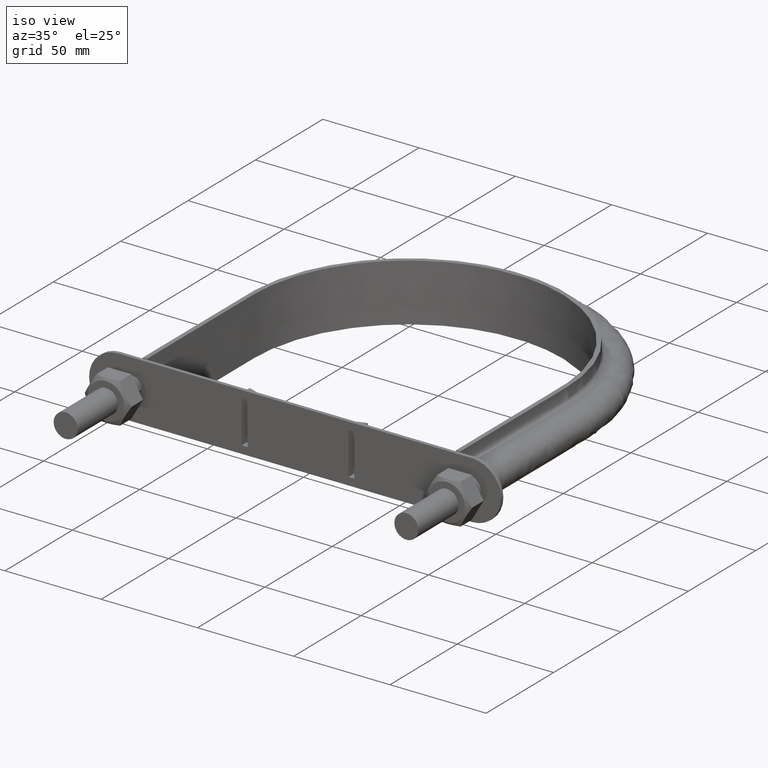
[diagram: clean part render]
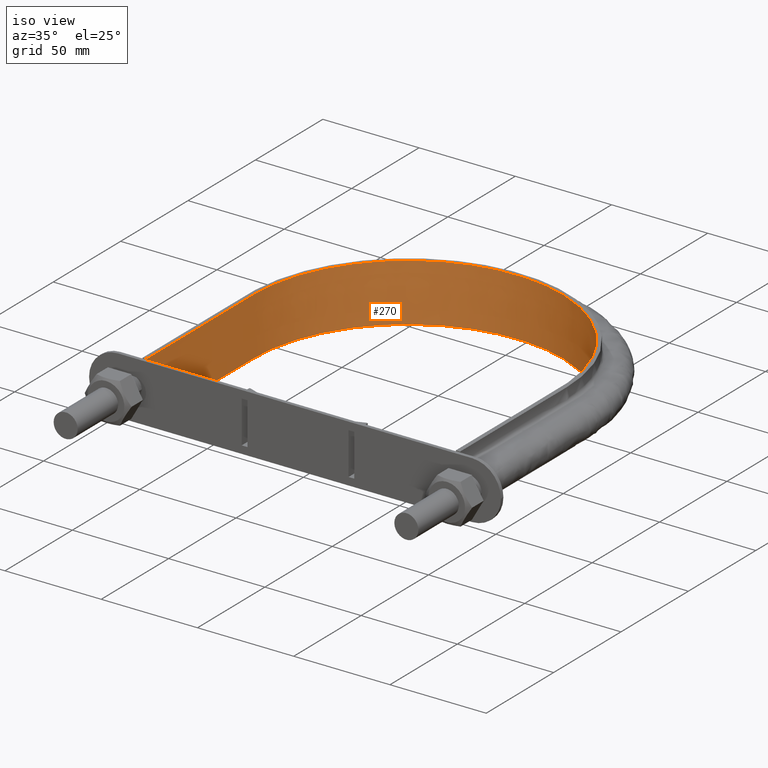
[diagram: same view with one face highlighted and labeled with its STEP entity id]
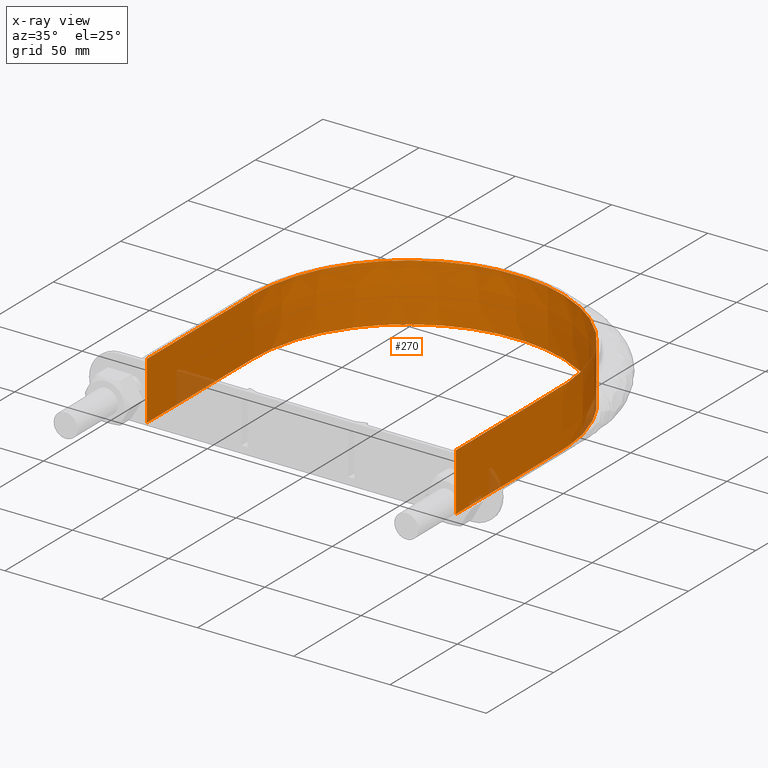
[diagram: x-ray of the same camera — body ghosted, the highlighted face saturated]
A machine part, iso view. The second image highlights one B-rep face of the part: STEP entity #270.
The next image is the same camera in x-ray: the body ghosted, the highlighted face saturated — about 3% of this face is hidden behind the body in this view.
In plain terms, the highlighted face is a SurfaceOfExtrusion surface.
Its self-contained STEP definition (entity closure, byte-faithful):
#270 = ADVANCED_FACE( '', ( #353 ), #354, .T. );
#353 = FACE_OUTER_BOUND( '', #540, .T. );
#354 = SURFACE_OF_LINEAR_EXTRUSION( '', #541, #542 );
#540 = EDGE_LOOP( '', ( #1652, #1653, #1654, #1655 ) );
#541 = B_SPLINE_CURVE_WITH_KNOTS( '', 3, ( #1656, #1657, #1658, #1659, #1660, #1661, #1662, #1663, #1664, #1665, #1666, #1667, #1668, #1669, #1670, #1671, #1672, #1673 ), .UNSPECIFIED., .F., .F., ( 4, 3, 1, 1, 1, 1, 1, 1, 1, 1, 3, 4 ), ( -9.00000000000000, -8.00000000000000, -7.50000000000000, -7.00000000000000, -6.00000000000000, -5.00000000000000, -4.00000000000000, -3.00000000000000, -2.00000000000000, -1.50000000000000, -1.00000000000000, 0.000000000000000 ), .UNSPECIFIED. );
#542 = VECTOR( '', #1674, 1000.00000000000 );
#1652 = ORIENTED_EDGE( '', *, *, #2209, .F. );
#1653 = ORIENTED_EDGE( '', *, *, #2198, .F. );
#1654 = ORIENTED_EDGE( '', *, *, #2202, .T. );
#1655 = ORIENTED_EDGE( '', *, *, #2206, .T. );
#1656 = CARTESIAN_POINT( '', ( -80.2500000000000, 48.5000000000001, -270.018143165184 ) );
#1657 = CARTESIAN_POINT( '', ( -80.2500000000000, 74.9200000000001, -270.018143165184 ) );
#1658 = CARTESIAN_POINT( '', ( -80.2500000000000, 101.340000000000, -270.018143165184 ) );
#1659 = CARTESIAN_POINT( '', ( -80.2500000000000, 127.760000000000, -270.018143165184 ) );
#1660 = CARTESIAN_POINT( '', ( -80.2500000000000, 133.750586735035, -270.018143165184 ) );
#1661 = CARTESIAN_POINT( '', ( -78.8786264043398, 145.768376163953, -270.018143165184 ) );
#1662 = CARTESIAN_POINT( '', ( -70.9339277239971, 168.577888193896, -270.018143165184 ) );
#1663 = CARTESIAN_POINT( '', ( -51.7427931998640, 192.644676397937, -270.018143165184 ) );
#1664 = CARTESIAN_POINT( '', ( -18.4670121667006, 208.668622663522, -270.018143165184 ) );
#1665 = CARTESIAN_POINT( '', ( 18.4670121667005, 208.668622663522, -270.018143165184 ) );
#1666 = CARTESIAN_POINT( '', ( 51.7427931998639, 192.644676397937, -270.018143165184 ) );
#1667 = CARTESIAN_POINT( '', ( 70.9339277239970, 168.577888193896, -270.018143165184 ) );
#1668 = CARTESIAN_POINT( '', ( 78.8786264043398, 145.768376163953, -270.018143165184 ) );
#1669 = CARTESIAN_POINT( '', ( 80.2500000000000, 133.750586735035, -270.018143165184 ) );
#1670 = CARTESIAN_POINT( '', ( 80.2499999999999, 127.760000000000, -270.018143165184 ) );
#1671 = CARTESIAN_POINT( '', ( 80.2499999999999, 101.340000000000, -270.018143165184 ) );
#1672 = CARTESIAN_POINT( '', ( 80.2499999999999, 74.9200000000000, -270.018143165184 ) );
#1673 = CARTESIAN_POINT( '', ( 80.2499999999999, 48.5000000000000, -270.018143165184 ) );
#1674 = DIRECTION( '', ( 0.000000000000000, 0.000000000000000, 1.00000000000000 ) );
#2198 = EDGE_CURVE( '', #2355, #2356, #2357, .T. );
#2202 = EDGE_CURVE( '', #2355, #2363, #2364, .T. );
#2206 = EDGE_CURVE( '', #2363, #2370, #2371, .T. );
#2209 = EDGE_CURVE( '', #2356, #2370, #2375, .T. );
#2355 = VERTEX_POINT( '', #2633 );
#2356 = VERTEX_POINT( '', #2634 );
#2357 = LINE( '', #2635, #2636 );
#2363 = VERTEX_POINT( '', #2674 );
#2364 = B_SPLINE_CURVE_WITH_KNOTS( '', 3, ( #2675, #2676, #2677, #2678, #2679, #2680, #2681, #2682, #2683, #2684, #2685, #2686, #2687, #2688, #2689, #2690, #2691, #2692 ), .UNSPECIFIED., .F., .F., ( 4, 3, 1, 1, 1, 1, 1, 1, 1, 1, 3, 4 ), ( -9.00000000000000, -8.00000000000000, -7.50000000000000, -7.00000000000000, -6.00000000000000, -5.00000000000000, -4.00000000000000, -3.00000000000000, -2.00000000000000, -1.50000000000000, -1.00000000000000, 0.000000000000000 ), .UNSPECIFIED. );
#2370 = VERTEX_POINT( '', #2726 );
#2371 = LINE( '', #2727, #2728 );
#2375 = B_SPLINE_CURVE_WITH_KNOTS( '', 3, ( #2763, #2764, #2765, #2766, #2767, #2768, #2769, #2770, #2771, #2772, #2773, #2774, #2775, #2776, #2777, #2778, #2779, #2780 ), .UNSPECIFIED., .F., .F., ( 4, 3, 1, 1, 1, 1, 1, 1, 1, 1, 3, 4 ), ( -9.00000000000000, -8.00000000000000, -7.50000000000000, -7.00000000000000, -6.00000000000000, -5.00000000000000, -4.00000000000000, -3.00000000000000, -2.00000000000000, -1.50000000000000, -1.00000000000000, 0.000000000000000 ), .UNSPECIFIED. );
#2633 = CARTESIAN_POINT( '', ( -80.2499999999999, 48.5000000000003, -15.0000000000000 ) );
#2634 = CARTESIAN_POINT( '', ( -80.2499999999999, 48.5000000000003, 15.0000000000000 ) );
#2635 = CARTESIAN_POINT( '', ( -80.2500000000000, 48.5000000000001, -270.018143165184 ) );
#2636 = VECTOR( '', #3311, 1000.00000000000 );
#2674 = CARTESIAN_POINT( '', ( 80.2499999999999, 48.5000000000000, -15.0000000000002 ) );
#2675 = CARTESIAN_POINT( '', ( -80.2500000000000, 48.5000000000001, -15.0000000000001 ) );
#2676 = CARTESIAN_POINT( '', ( -80.2500000000000, 74.9200000000001, -15.0000000000001 ) );
#2677 = CARTESIAN_POINT( '', ( -80.2500000000000, 101.340000000000, -15.0000000000001 ) );
#2678 = CARTESIAN_POINT( '', ( -80.2500000000000, 127.760000000000, -15.0000000000001 ) );
#2679 = CARTESIAN_POINT( '', ( -80.2500000000000, 133.750586735035, -15.0000000000001 ) );
#2680 = CARTESIAN_POINT( '', ( -78.8786264043398, 145.768376163953, -15.0000000000001 ) );
#2681 = CARTESIAN_POINT( '', ( -70.9339277239971, 168.577888193896, -15.0000000000001 ) );
#2682 = CARTESIAN_POINT( '', ( -51.7427931998640, 192.644676397937, -15.0000000000001 ) );
#2683 = CARTESIAN_POINT( '', ( -18.4670121667006, 208.668622663522, -15.0000000000001 ) );
#2684 = CARTESIAN_POINT( '', ( 18.4670121667005, 208.668622663522, -15.0000000000001 ) );
#2685 = CARTESIAN_POINT( '', ( 51.7427931998639, 192.644676397937, -15.0000000000001 ) );
#2686 = CARTESIAN_POINT( '', ( 70.9339277239970, 168.577888193896, -15.0000000000001 ) );
#2687 = CARTESIAN_POINT( '', ( 78.8786264043398, 145.768376163953, -15.0000000000001 ) );
#2688 = CARTESIAN_POINT( '', ( 80.2500000000000, 133.750586735035, -15.0000000000001 ) );
#2689 = CARTESIAN_POINT( '', ( 80.2499999999999, 127.760000000000, -15.0000000000001 ) );
#2690 = CARTESIAN_POINT( '', ( 80.2499999999999, 101.340000000000, -15.0000000000001 ) );
#2691 = CARTESIAN_POINT( '', ( 80.2499999999999, 74.9200000000000, -15.0000000000001 ) );
#2692 = CARTESIAN_POINT( '', ( 80.2499999999999, 48.5000000000000, -15.0000000000001 ) );
#2726 = CARTESIAN_POINT( '', ( 80.2500000000001, 48.5000000000003, 15.0000000000000 ) );
#2727 = CARTESIAN_POINT( '', ( 80.2499999999999, 48.5000000000000, -270.018143165184 ) );
#2728 = VECTOR( '', #3315, 1000.00000000000 );
#2763 = CARTESIAN_POINT( '', ( -80.2500000000000, 48.5000000000001, 14.9999999999999 ) );
#2764 = CARTESIAN_POINT( '', ( -80.2500000000000, 74.9200000000001, 14.9999999999999 ) );
#2765 = CARTESIAN_POINT( '', ( -80.2500000000000, 101.340000000000, 14.9999999999999 ) );
#2766 = CARTESIAN_POINT( '', ( -80.2500000000000, 127.760000000000, 14.9999999999999 ) );
#2767 = CARTESIAN_POINT( '', ( -80.2500000000000, 133.750586735035, 14.9999999999999 ) );
#2768 = CARTESIAN_POINT( '', ( -78.8786264043398, 145.768376163953, 14.9999999999999 ) );
#2769 = CARTESIAN_POINT( '', ( -70.9339277239971, 168.577888193896, 14.9999999999999 ) );
#2770 = CARTESIAN_POINT( '', ( -51.7427931998640, 192.644676397937, 14.9999999999999 ) );
#2771 = CARTESIAN_POINT( '', ( -18.4670121667006, 208.668622663522, 14.9999999999999 ) );
#2772 = CARTESIAN_POINT( '', ( 18.4670121667005, 208.668622663522, 14.9999999999999 ) );
#2773 = CARTESIAN_POINT( '', ( 51.7427931998639, 192.644676397937, 14.9999999999999 ) );
#2774 = CARTESIAN_POINT( '', ( 70.9339277239970, 168.577888193896, 14.9999999999999 ) );
#2775 = CARTESIAN_POINT( '', ( 78.8786264043398, 145.768376163953, 14.9999999999999 ) );
#2776 = CARTESIAN_POINT( '', ( 80.2500000000000, 133.750586735035, 14.9999999999999 ) );
#2777 = CARTESIAN_POINT( '', ( 80.2499999999999, 127.760000000000, 14.9999999999999 ) );
#2778 = CARTESIAN_POINT( '', ( 80.2499999999999, 101.340000000000, 14.9999999999999 ) );
#2779 = CARTESIAN_POINT( '', ( 80.2499999999999, 74.9200000000000, 14.9999999999999 ) );
#2780 = CARTESIAN_POINT( '', ( 80.2499999999999, 48.5000000000000, 14.9999999999999 ) );
#3311 = DIRECTION( '', ( 0.000000000000000, 0.000000000000000, 1.00000000000000 ) );
#3315 = DIRECTION( '', ( 0.000000000000000, 0.000000000000000, 1.00000000000000 ) );